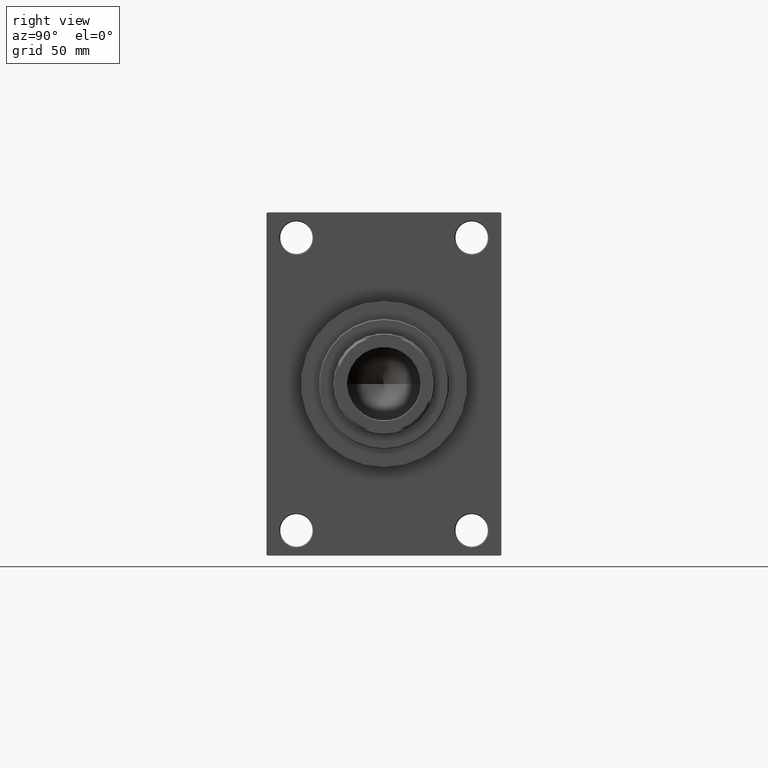
[diagram: clean part render]
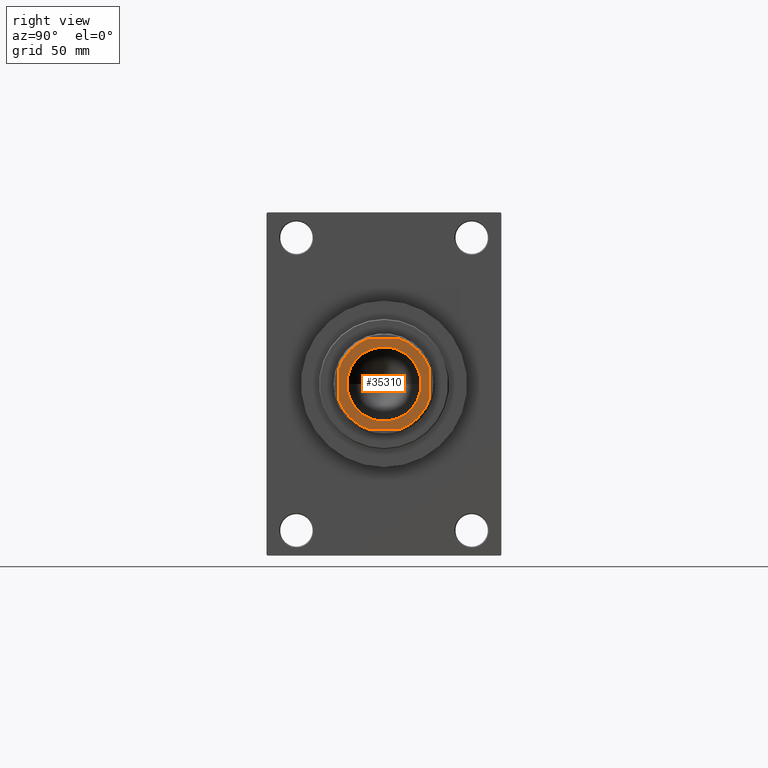
[diagram: same view with one face highlighted and labeled with its STEP entity id]
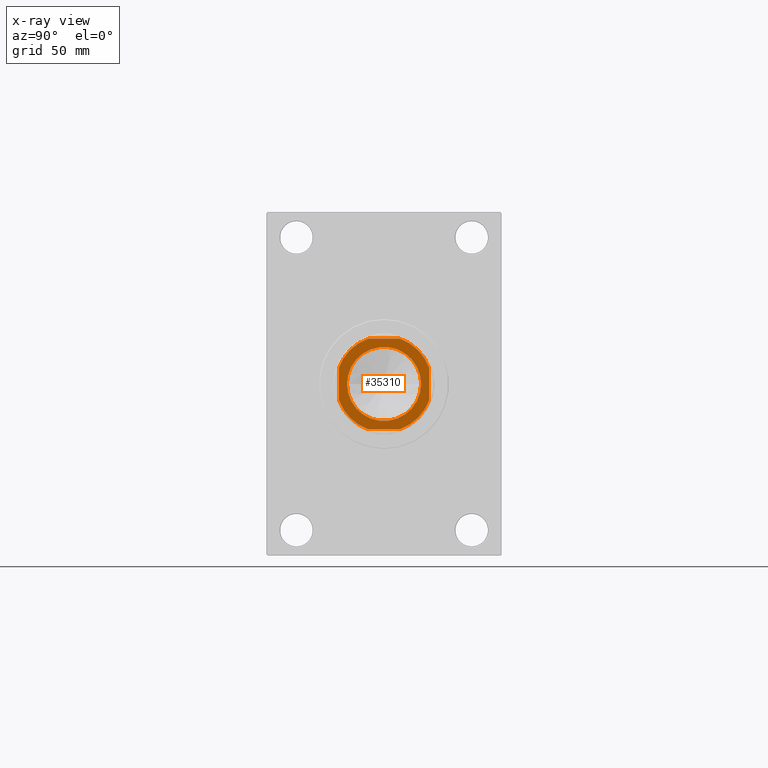
[diagram: x-ray of the same camera — body ghosted, the highlighted face saturated]
A machine part, right view. The second image highlights one B-rep face of the part: STEP entity #35310.
The next image is the same camera in x-ray: the body ghosted, the highlighted face saturated — about 0% of this face is hidden behind the body in this view.
In plain terms, the highlighted planar face has unit normal (1, 0, 0).
Its self-contained STEP definition (entity closure, byte-faithful):
#205 = DIRECTION ( 'NONE',  ( 1.000000000000000000, 0.000000000000000000, 0.000000000000000000 ) ) ;
#820 = ORIENTED_EDGE ( 'NONE', *, *, #13663, .T. ) ;
#1263 = EDGE_CURVE ( 'NONE', #16553, #21110, #7017, .T. ) ;
#1524 = DIRECTION ( 'NONE',  ( 1.000000000000000000, 0.000000000000000000, 0.000000000000000000 ) ) ;
#2915 = ORIENTED_EDGE ( 'NONE', *, *, #27716, .T. ) ;
#2980 = VERTEX_POINT ( 'NONE', #31815 ) ;
#4500 = ORIENTED_EDGE ( 'NONE', *, *, #28103, .T. ) ;
#4697 = CARTESIAN_POINT ( 'NONE',  ( -8.789197915623267576, -25.00000000000000000, 268.0000000000000000 ) ) ;
#5136 = VECTOR ( 'NONE', #38949, 1000.000000000000000 ) ;
#5685 = EDGE_CURVE ( 'NONE', #26136, #28939, #21794, .T. ) ;
#6081 = EDGE_CURVE ( 'NONE', #42187, #2980, #31824, .T. ) ;
#6515 = FACE_BOUND ( 'NONE', #25206, .T. ) ;
#6542 = AXIS2_PLACEMENT_3D ( 'NONE', #36885, #21448, #205 ) ;
#6754 = DIRECTION ( 'NONE',  ( 1.000000000000000000, 0.000000000000000000, 0.000000000000000000 ) ) ;
#7017 = CIRCLE ( 'NONE', #36291, 26.50000000000000355 ) ;
#7129 = CARTESIAN_POINT ( 'NONE',  ( 25.00000000000000355, 8.789197915623473634, 268.0000000000000000 ) ) ;
#9438 = CIRCLE ( 'NONE', #21769, 26.49999999999993250 ) ;
#9815 = CARTESIAN_POINT ( 'NONE',  ( -8.789197915623310209, 25.00000000000000000, 268.0000000000000000 ) ) ;
#10281 = DIRECTION ( 'NONE',  ( 0.000000000000000000, -0.000000000000000000, -1.000000000000000000 ) ) ;
#10585 = LINE ( 'NONE', #31845, #21386 ) ;
#11234 = DIRECTION ( 'NONE',  ( -0.000000000000000000, 0.000000000000000000, 1.000000000000000000 ) ) ;
#12159 = AXIS2_PLACEMENT_3D ( 'NONE', #39813, #47066, #6754 ) ;
#12572 = CARTESIAN_POINT ( 'NONE',  ( -20.55000000000003979, 2.516649172247815893E-15, 268.0000000000000000 ) ) ;
#13506 = DIRECTION ( 'NONE',  ( 1.000000000000000000, 0.000000000000000000, 0.000000000000000000 ) ) ;
#13663 = EDGE_CURVE ( 'NONE', #28939, #23303, #45249, .T. ) ;
#15158 = VECTOR ( 'NONE', #42818, 1000.000000000000000 ) ;
#15763 = VECTOR ( 'NONE', #23028, 1000.000000000000000 ) ;
#16553 = VERTEX_POINT ( 'NONE', #7129 ) ;
#17753 = CARTESIAN_POINT ( 'NONE',  ( 0.000000000000000000, 0.000000000000000000, 268.0000000000000000 ) ) ;
#19136 = DIRECTION ( 'NONE',  ( 1.000000000000000000, 0.000000000000000000, 0.000000000000000000 ) ) ;
#19656 = EDGE_CURVE ( 'NONE', #23303, #36119, #9438, .T. ) ;
#19876 = DIRECTION ( 'NONE',  ( -0.000000000000000000, 0.000000000000000000, 1.000000000000000000 ) ) ;
#20048 = EDGE_LOOP ( 'NONE', ( #31141, #27662, #26807, #46503, #820, #39445, #28886, #40160 ) ) ;
#20370 = CARTESIAN_POINT ( 'NONE',  ( 25.00000000000000000, 25.00000000000000000, 268.0000000000000000 ) ) ;
#21110 = VERTEX_POINT ( 'NONE', #47746 ) ;
#21231 = FACE_OUTER_BOUND ( 'NONE', #20048, .T. ) ;
#21386 = VECTOR ( 'NONE', #13506, 1000.000000000000000 ) ;
#21448 = DIRECTION ( 'NONE',  ( 0.000000000000000000, -0.000000000000000000, -1.000000000000000000 ) ) ;
#21769 = AXIS2_PLACEMENT_3D ( 'NONE', #29244, #29009, #36489 ) ;
#21794 = CIRCLE ( 'NONE', #44165, 26.49999999999994671 ) ;
#23028 = DIRECTION ( 'NONE',  ( 1.387778780781445676E-16, -1.000000000000000000, 0.000000000000000000 ) ) ;
#23303 = VERTEX_POINT ( 'NONE', #28240 ) ;
#25021 = CARTESIAN_POINT ( 'NONE',  ( -24.99999999999999645, 8.789197915623319091, 268.0000000000000000 ) ) ;
#25206 = EDGE_LOOP ( 'NONE', ( #4500, #2915 ) ) ;
#26136 = VERTEX_POINT ( 'NONE', #9815 ) ;
#26624 = CARTESIAN_POINT ( 'NONE',  ( 0.000000000000000000, 0.000000000000000000, 268.0000000000000000 ) ) ;
#26807 = ORIENTED_EDGE ( 'NONE', *, *, #32386, .T. ) ;
#27662 = ORIENTED_EDGE ( 'NONE', *, *, #1263, .T. ) ;
#27716 = EDGE_CURVE ( 'NONE', #44141, #40990, #43515, .T. ) ;
#28103 = EDGE_CURVE ( 'NONE', #40990, #44141, #36585, .T. ) ;
#28240 = CARTESIAN_POINT ( 'NONE',  ( -24.99999999999999645, -8.789197915623281787, 268.0000000000000000 ) ) ;
#28611 = DIRECTION ( 'NONE',  ( 1.000000000000000000, 0.000000000000000000, 0.000000000000000000 ) ) ;
#28619 = DIRECTION ( 'NONE',  ( 1.000000000000000000, 0.000000000000000000, 0.000000000000000000 ) ) ;
#28857 = CARTESIAN_POINT ( 'NONE',  ( 0.000000000000000000, 0.000000000000000000, 268.0000000000000000 ) ) ;
#28886 = ORIENTED_EDGE ( 'NONE', *, *, #33751, .T. ) ;
#28939 = VERTEX_POINT ( 'NONE', #25021 ) ;
#29009 = DIRECTION ( 'NONE',  ( -0.000000000000000000, 0.000000000000000000, 1.000000000000000000 ) ) ;
#29244 = CARTESIAN_POINT ( 'NONE',  ( 0.000000000000000000, 0.000000000000000000, 268.0000000000000000 ) ) ;
#30271 = CARTESIAN_POINT ( 'NONE',  ( -25.00000000000000000, 25.00000000000000000, 268.0000000000000000 ) ) ;
#31141 = ORIENTED_EDGE ( 'NONE', *, *, #32514, .T. ) ;
#31238 = LINE ( 'NONE', #31947, #5136 ) ;
#31815 = CARTESIAN_POINT ( 'NONE',  ( 25.00000000000000355, -8.789197915623464752, 268.0000000000000000 ) ) ;
#31824 = CIRCLE ( 'NONE', #38743, 26.50000000000000355 ) ;
#31845 = CARTESIAN_POINT ( 'NONE',  ( -24.99999999999999289, -25.00000000000000000, 268.0000000000000000 ) ) ;
#31947 = CARTESIAN_POINT ( 'NONE',  ( -25.00000000000000000, 25.00000000000000000, 268.0000000000000000 ) ) ;
#32386 = EDGE_CURVE ( 'NONE', #21110, #26136, #31238, .T. ) ;
#32514 = EDGE_CURVE ( 'NONE', #2980, #16553, #43056, .T. ) ;
#33518 = AXIS2_PLACEMENT_3D ( 'NONE', #17753, #10281, #28619 ) ;
#33751 = EDGE_CURVE ( 'NONE', #36119, #42187, #10585, .T. ) ;
#35310 = ADVANCED_FACE ( 'NONE', ( #6515, #21231 ), #36418, .T. ) ;
#36119 = VERTEX_POINT ( 'NONE', #4697 ) ;
#36291 = AXIS2_PLACEMENT_3D ( 'NONE', #38445, #19876, #1524 ) ;
#36418 = PLANE ( 'NONE',  #12159 ) ;
#36489 = DIRECTION ( 'NONE',  ( 1.000000000000000000, 0.000000000000000000, 0.000000000000000000 ) ) ;
#36585 = CIRCLE ( 'NONE', #33518, 20.55000000000003979 ) ;
#36885 = CARTESIAN_POINT ( 'NONE',  ( 0.000000000000000000, 0.000000000000000000, 268.0000000000000000 ) ) ;
#38445 = CARTESIAN_POINT ( 'NONE',  ( 0.000000000000000000, 0.000000000000000000, 268.0000000000000000 ) ) ;
#38743 = AXIS2_PLACEMENT_3D ( 'NONE', #26624, #44969, #19136 ) ;
#38949 = DIRECTION ( 'NONE',  ( -1.000000000000000000, -0.000000000000000000, -0.000000000000000000 ) ) ;
#39445 = ORIENTED_EDGE ( 'NONE', *, *, #19656, .T. ) ;
#39679 = CARTESIAN_POINT ( 'NONE',  ( 8.789197915623477186, -25.00000000000000000, 268.0000000000000000 ) ) ;
#39813 = CARTESIAN_POINT ( 'NONE',  ( 0.000000000000000000, 0.000000000000000000, 268.0000000000000000 ) ) ;
#40160 = ORIENTED_EDGE ( 'NONE', *, *, #6081, .T. ) ;
#40990 = VERTEX_POINT ( 'NONE', #46672 ) ;
#42187 = VERTEX_POINT ( 'NONE', #39679 ) ;
#42818 = DIRECTION ( 'NONE',  ( -1.387778780781445676E-16, 1.000000000000000000, -0.000000000000000000 ) ) ;
#43056 = LINE ( 'NONE', #20370, #15158 ) ;
#43515 = CIRCLE ( 'NONE', #6542, 20.55000000000003979 ) ;
#44141 = VERTEX_POINT ( 'NONE', #12572 ) ;
#44165 = AXIS2_PLACEMENT_3D ( 'NONE', #28857, #11234, #28611 ) ;
#44969 = DIRECTION ( 'NONE',  ( -0.000000000000000000, 0.000000000000000000, 1.000000000000000000 ) ) ;
#45249 = LINE ( 'NONE', #30271, #15763 ) ;
#46503 = ORIENTED_EDGE ( 'NONE', *, *, #5685, .T. ) ;
#46672 = CARTESIAN_POINT ( 'NONE',  ( 20.55000000000003979, 0.000000000000000000, 268.0000000000000000 ) ) ;
#47066 = DIRECTION ( 'NONE',  ( -0.000000000000000000, 0.000000000000000000, 1.000000000000000000 ) ) ;
#47746 = CARTESIAN_POINT ( 'NONE',  ( 8.789197915623478963, 25.00000000000000000, 268.0000000000000000 ) ) ;